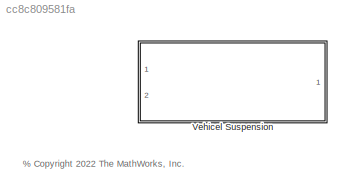
MODEL slx_cc8c809581fa
KIND library
CONFIG AbsTol = auto
CONFIG EnableMultiTasking = off
CONFIG FixedStep = auto
CONFIG MaxStep = auto
CONFIG MinStep = auto
CONFIG RelTol = 1e-3
CONFIG SampleTimeConstraint = Unconstrained
CONFIG SolverName = VariableStepAuto
CONFIG StartTime = 0.0
CONFIG StopTime = 10.0
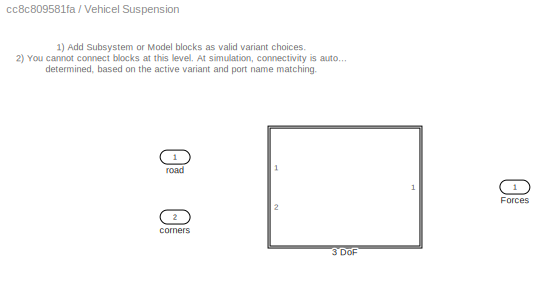
BLOCK [SubSystem] Vehicel Suspension
  LabelModeActiveChoice = suspension.threeDof
  Ports = [2, 1]
  RequestExecContextInheritance = off
  Variant = on
  VariantControlMode = label
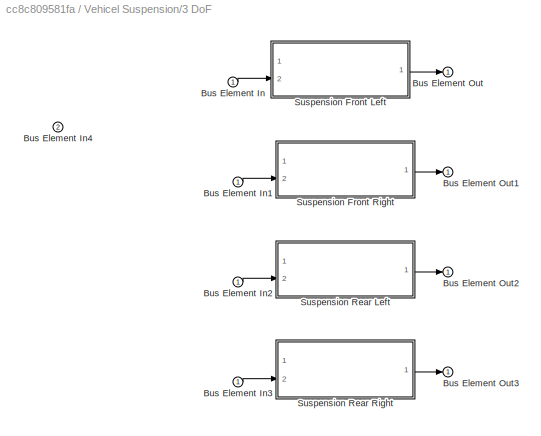
BLOCK [SubSystem] Vehicel Suspension/3 DoF
  Ports = [2, 1]
  RequestExecContextInheritance = off
  VariantControl = suspension.threeDof
BLOCK [Inport] Vehicel Suspension/3 DoF/Bus Element In
BLOCK [Inport] Vehicel Suspension/3 DoF/Bus Element In1
BLOCK [Inport] Vehicel Suspension/3 DoF/Bus Element In2
BLOCK [Inport] Vehicel Suspension/3 DoF/Bus Element In3
BLOCK [Inport] Vehicel Suspension/3 DoF/Bus Element In4
  Port = 2
BLOCK [Outport] Vehicel Suspension/3 DoF/Bus Element Out
BLOCK [Outport] Vehicel Suspension/3 DoF/Bus Element Out1
BLOCK [Outport] Vehicel Suspension/3 DoF/Bus Element Out2
BLOCK [Outport] Vehicel Suspension/3 DoF/Bus Element Out3
BLOCK [SubSystem] Vehicel Suspension/3 DoF/Suspension Front Left
  AttributesFormatString = %<obj>
  Ports = [2, 1]
  ReferencedSubsystem = suspension_ss
  RequestExecContextInheritance = off
  obj = obj.FrontLeft
BLOCK [SubSystem] Vehicel Suspension/3 DoF/Suspension Front Right
  AttributesFormatString = %<obj>
  Ports = [2, 1]
  ReferencedSubsystem = suspension_ss
  RequestExecContextInheritance = off
  obj = obj.FrontRight
BLOCK [SubSystem] Vehicel Suspension/3 DoF/Suspension Rear Left
  AttributesFormatString = %<obj>
  Ports = [2, 1]
  ReferencedSubsystem = suspension_ss
  RequestExecContextInheritance = off
  obj = obj.RearLeft
BLOCK [SubSystem] Vehicel Suspension/3 DoF/Suspension Rear Right
  AttributesFormatString = %<obj>
  Ports = [2, 1]
  ReferencedSubsystem = suspension_ss
  RequestExecContextInheritance = off
  obj = obj.RearRight
BLOCK [Outport] Vehicel Suspension/Forces
BLOCK [Inport] Vehicel Suspension/corners
  Port = 2
BLOCK [Inport] Vehicel Suspension/road
ANNOTATION (root): % <copyright redacted>
ANNOTATION Vehicel Suspension: 1) Add Subsystem or Model blocks as valid variant choices. 2) You cannot connect blocks at this level. At simulation, connectivity is automatically determined, based on the active variant and port name matching.
LINE Vehicel Suspension/3 DoF/Bus Element In1:1 -> Vehicel Suspension/3 DoF/Suspension Front Right:2
LINE Vehicel Suspension/3 DoF/Bus Element In2:1 -> Vehicel Suspension/3 DoF/Suspension Rear Left:2
LINE Vehicel Suspension/3 DoF/Bus Element In3:1 -> Vehicel Suspension/3 DoF/Suspension Rear Right:2
LINE Vehicel Suspension/3 DoF/Bus Element In:1 -> Vehicel Suspension/3 DoF/Suspension Front Left:2
LINE Vehicel Suspension/3 DoF/Suspension Front Left:1 -> Vehicel Suspension/3 DoF/Bus Element Out:1
LINE Vehicel Suspension/3 DoF/Suspension Front Right:1 -> Vehicel Suspension/3 DoF/Bus Element Out1:1
LINE Vehicel Suspension/3 DoF/Suspension Rear Left:1 -> Vehicel Suspension/3 DoF/Bus Element Out2:1
LINE Vehicel Suspension/3 DoF/Suspension Rear Right:1 -> Vehicel Suspension/3 DoF/Bus Element Out3:1
